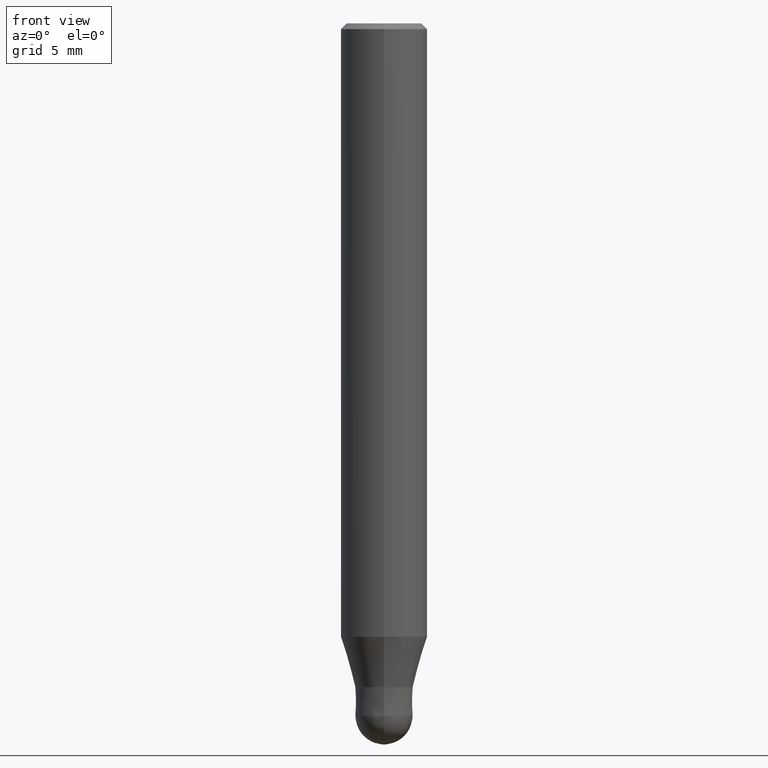
[diagram: clean part render]
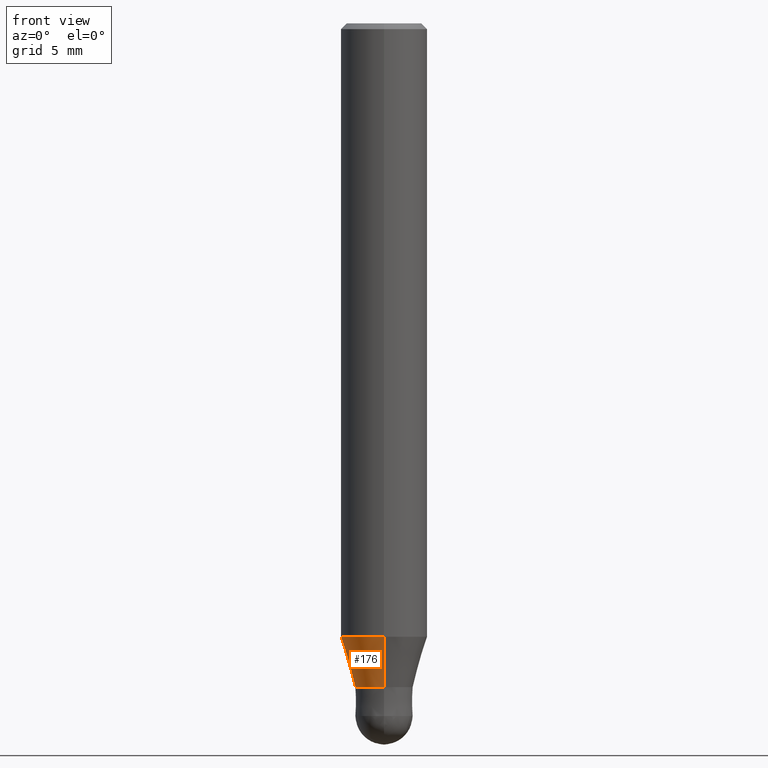
[diagram: same view with one face highlighted and labeled with its STEP entity id]
A machine part, front view. The second image highlights one B-rep face of the part: STEP entity #176.
In plain terms, the highlighted conical surface has half-angle 16.002 deg.
Its self-contained STEP definition (entity closure, byte-faithful):
#90=VERTEX_POINT('',#216);
#112=EDGE_CURVE('',#138,#90,#240,.T.);
#118=EDGE_CURVE('',#152,#138,#246,.T.);
#136=VERTEX_POINT('',#269);
#138=VERTEX_POINT('',#271);
#152=VERTEX_POINT('',#286);
#154=EDGE_CURVE('',#152,#136,#288,.T.);
#162=EDGE_CURVE('',#90,#136,#297,.T.);
#176=ADVANCED_FACE('',(#313),#314,.T.);
#216=CARTESIAN_POINT('',(0.0,2.99995,-42.513));
#240=CIRCLE('',#384,2.99995);
#246=LINE('',#390,#391);
#269=CARTESIAN_POINT('',(0.0,1.99995,-46.0));
#271=CARTESIAN_POINT('',(3.67375783114944E-016,-2.99995,-42.513));
#286=CARTESIAN_POINT('',(2.44915147732706E-016,-1.99995,-46.0));
#288=CIRCLE('',#437,1.99995);
#297=LINE('',#447,#448);
#313=FACE_OUTER_BOUND('',#468,.T.);
#314=CONICAL_SURFACE('',#469,2.49995,0.279284171542493);
#384=AXIS2_PLACEMENT_3D('',#526,#527,#528);
#390=CARTESIAN_POINT('',(3.06145465423825E-016,-2.49995,-44.2565));
#391=VECTOR('',#530,1.0);
#437=AXIS2_PLACEMENT_3D('',#582,#583,#584);
#447=CARTESIAN_POINT('',(-3.06145465423825E-016,2.49995,-44.2565));
#448=VECTOR('',#591,1.0);
#468=EDGE_LOOP('',(#614,#615,#616,#617));
#469=AXIS2_PLACEMENT_3D('',#618,#619,#620);
#526=CARTESIAN_POINT('',(0.0,0.0,-42.513));
#527=DIRECTION('',(0.0,0.0,-1.0));
#528=DIRECTION('',(0.0,1.0,0.0));
#530=DIRECTION('',(3.3758432755158E-017,-0.275667626987133,0.961253015304131));
#582=CARTESIAN_POINT('',(0.0,0.0,-46.0));
#583=DIRECTION('',(0.0,0.0,-1.0));
#584=DIRECTION('',(0.0,1.0,0.0));
#591=DIRECTION('',(3.3758432755158E-017,-0.275667626987133,-0.961253015304131));
#614=ORIENTED_EDGE('',*,*,#162,.T.);
#615=ORIENTED_EDGE('',*,*,#154,.F.);
#616=ORIENTED_EDGE('',*,*,#118,.T.);
#617=ORIENTED_EDGE('',*,*,#112,.T.);
#618=CARTESIAN_POINT('',(0.0,0.0,-44.2565));
#619=DIRECTION('',(-0.0,-0.0,1.0));
#620=DIRECTION('',(0.0,1.0,0.0));